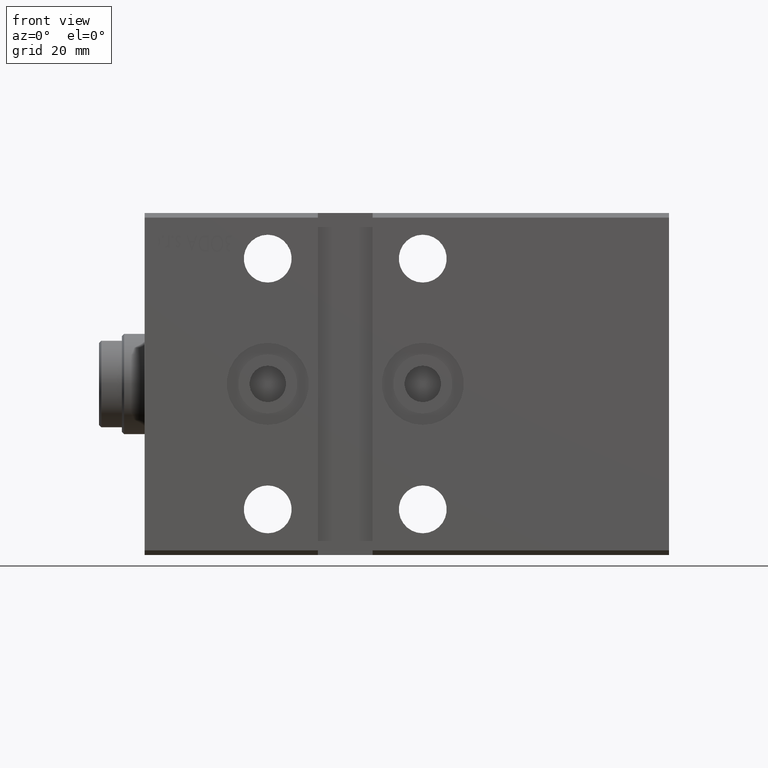
[diagram: clean part render]
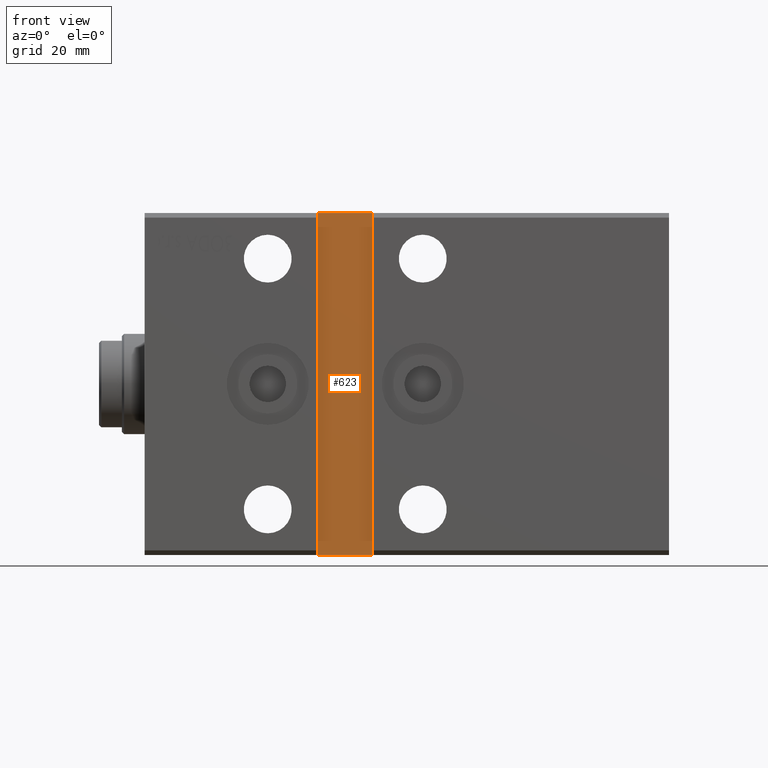
[diagram: same view with one face highlighted and labeled with its STEP entity id]
A machine part, front view. The second image highlights one B-rep face of the part: STEP entity #623.
In plain terms, the highlighted planar face has unit normal (0, -1, -0).
Its self-contained STEP definition (entity closure, byte-faithful):
#623 = ADVANCED_FACE ( 'NONE', ( #25468 ), #28210, .T. ) ;
#1692 = EDGE_CURVE ( 'NONE', #23973, #11411, #38687, .T. ) ;
#2005 = CARTESIAN_POINT ( 'NONE',  ( 49.99999999999999289, -25.50000000000000711, 37.50000000000000711 ) ) ;
#6402 = DIRECTION ( 'NONE',  ( -1.000000000000000000, -0.000000000000000000, -0.000000000000000000 ) ) ;
#7323 = AXIS2_PLACEMENT_3D ( 'NONE', #41076, #35348, #38323 ) ;
#8056 = VECTOR ( 'NONE', #18871, 1000.000000000000000 ) ;
#9205 = CARTESIAN_POINT ( 'NONE',  ( 38.00000000000000000, -25.50000000000000711, 37.50000000000000711 ) ) ;
#11411 = VERTEX_POINT ( 'NONE', #26939 ) ;
#12366 = DIRECTION ( 'NONE',  ( 9.251858538542971581E-17, 9.251858538542971581E-17, -1.000000000000000000 ) ) ;
#12538 = DIRECTION ( 'NONE',  ( -1.850371707708594316E-16, -9.251858538542971581E-17, 1.000000000000000000 ) ) ;
#12551 = CARTESIAN_POINT ( 'NONE',  ( 38.00000000000000711, -25.50000000000000355, -37.49999999999999289 ) ) ;
#12699 = ORIENTED_EDGE ( 'NONE', *, *, #32711, .T. ) ;
#13187 = VECTOR ( 'NONE', #12538, 1000.000000000000000 ) ;
#13226 = VERTEX_POINT ( 'NONE', #18904 ) ;
#13904 = EDGE_CURVE ( 'NONE', #19992, #13226, #18849, .T. ) ;
#16852 = EDGE_CURVE ( 'NONE', #11411, #19992, #37849, .T. ) ;
#17426 = CARTESIAN_POINT ( 'NONE',  ( 49.99999999999999289, -25.50000000000000711, 37.50000000000000711 ) ) ;
#18101 = CARTESIAN_POINT ( 'NONE',  ( 38.00000000000000711, -25.50000000000000355, -37.49999999999999289 ) ) ;
#18849 = LINE ( 'NONE', #25399, #30631 ) ;
#18871 = DIRECTION ( 'NONE',  ( 1.000000000000000000, 0.000000000000000000, 0.000000000000000000 ) ) ;
#18904 = CARTESIAN_POINT ( 'NONE',  ( 38.00000000000000000, -25.50000000000000711, 37.50000000000000711 ) ) ;
#19992 = VERTEX_POINT ( 'NONE', #17426 ) ;
#23973 = VERTEX_POINT ( 'NONE', #18101 ) ;
#24677 = ORIENTED_EDGE ( 'NONE', *, *, #1692, .T. ) ;
#24963 = VECTOR ( 'NONE', #12366, 1000.000000000000000 ) ;
#25399 = CARTESIAN_POINT ( 'NONE',  ( 38.00000000000000000, -25.50000000000000711, 37.50000000000000711 ) ) ;
#25468 = FACE_OUTER_BOUND ( 'NONE', #36109, .T. ) ;
#26939 = CARTESIAN_POINT ( 'NONE',  ( 50.00000000000000711, -25.50000000000000355, -37.49999999999999289 ) ) ;
#28210 = PLANE ( 'NONE',  #7323 ) ;
#30631 = VECTOR ( 'NONE', #6402, 1000.000000000000000 ) ;
#32711 = EDGE_CURVE ( 'NONE', #13226, #23973, #41656, .T. ) ;
#35348 = DIRECTION ( 'NONE',  ( 0.000000000000000000, -1.000000000000000000, -9.251858538542971581E-17 ) ) ;
#35512 = ORIENTED_EDGE ( 'NONE', *, *, #13904, .T. ) ;
#36109 = EDGE_LOOP ( 'NONE', ( #41020, #35512, #12699, #24677 ) ) ;
#37849 = LINE ( 'NONE', #2005, #13187 ) ;
#38323 = DIRECTION ( 'NONE',  ( 0.000000000000000000, 9.251858538542971581E-17, -1.000000000000000000 ) ) ;
#38687 = LINE ( 'NONE', #12551, #8056 ) ;
#41020 = ORIENTED_EDGE ( 'NONE', *, *, #16852, .T. ) ;
#41076 = CARTESIAN_POINT ( 'NONE',  ( 0.000000000000000000, -25.50000000000000355, -2.434119925021425278E-15 ) ) ;
#41656 = LINE ( 'NONE', #9205, #24963 ) ;